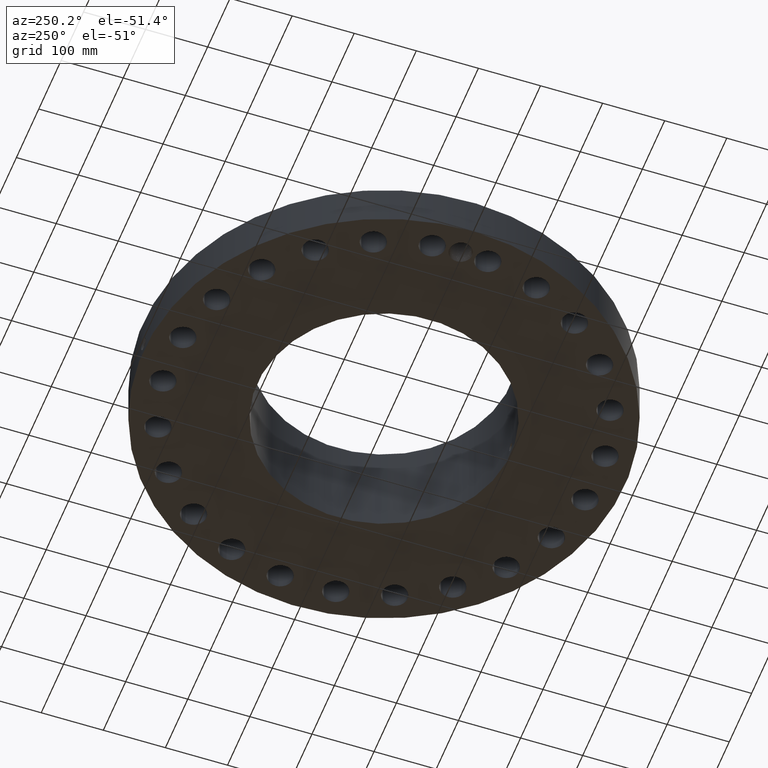
[diagram: clean part render]
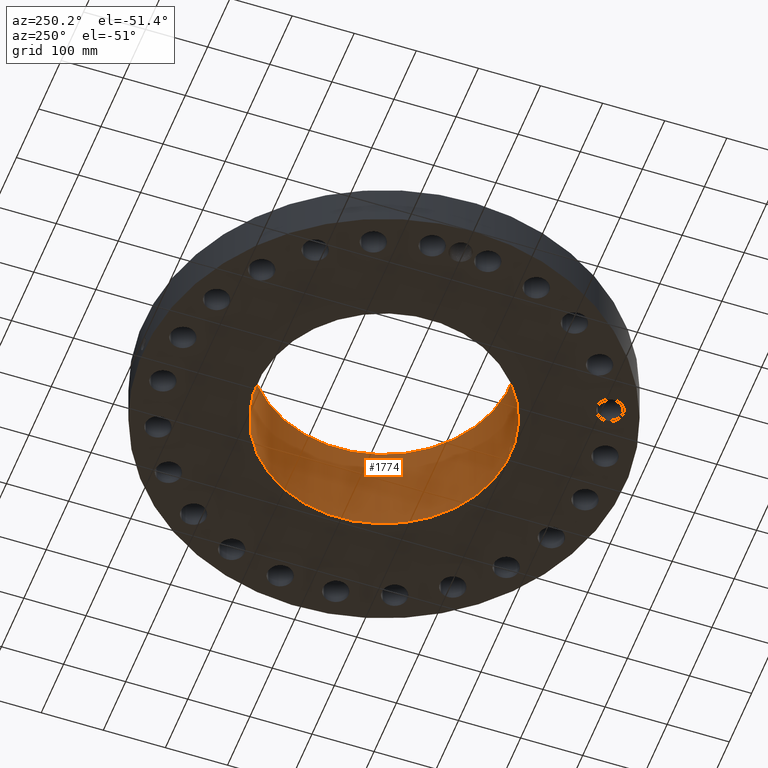
[diagram: same view with one face highlighted and labeled with its STEP entity id]
A machine part, auxiliary view. The second image highlights one B-rep face of the part: STEP entity #1774.
In plain terms, the highlighted cylindrical surface (partial cylindrical patch) has radius 203.987 mm, axis along (0, 0, -1).
Its self-contained STEP definition (entity closure, byte-faithful):
#253=AXIS2_PLACEMENT_3D('Circle Axis2P3D',#251,#252,$) ;
#1705=AXIS2_PLACEMENT_3D('Cylinder Axis2P3D',#1702,#1703,#1704) ;
#1709=AXIS2_PLACEMENT_3D('Circle Axis2P3D',#1707,#1708,$) ;
#251=CARTESIAN_POINT('Axis2P3D Location',(0.,0.,0.250000000001)) ;
#255=CARTESIAN_POINT('Vertex',(3.85026650055,7.04786555457,0.250000000001)) ;
#257=CARTESIAN_POINT('Vertex',(-3.85026650055,-7.04786555457,0.250000000001)) ;
#1702=CARTESIAN_POINT('Axis2P3D Location',(0.,0.,3.56000000001)) ;
#1707=CARTESIAN_POINT('Axis2P3D Location',(0.,0.,6.87000000003)) ;
#1711=CARTESIAN_POINT('Vertex',(3.85026650055,7.04786555457,6.87000000003)) ;
#1713=CARTESIAN_POINT('Vertex',(-3.85026650055,-7.04786555457,6.87000000003)) ;
#1716=CARTESIAN_POINT('Line Origine',(3.85026650055,7.04786555457,3.56000000001)) ;
#1721=CARTESIAN_POINT('Line Origine',(-3.85026650055,-7.04786555457,3.56000000001)) ;
#1733=CARTESIAN_POINT('Control Point',(0.219395640473,-8.02800265031,0.820143615352)) ;
#1734=CARTESIAN_POINT('Control Point',(0.194443231326,-8.02868456959,0.77446853678)) ;
#1735=CARTESIAN_POINT('Control Point',(0.157606155075,-8.02959426464,0.735289568023)) ;
#1736=CARTESIAN_POINT('Control Point',(0.111110289737,-8.03047894444,0.706757867075)) ;
#1737=CARTESIAN_POINT('Control Point',(0.0336761688549,-8.0311828387,0.68411782551)) ;
#1738=CARTESIAN_POINT('Control Point',(-0.0446680706343,-8.03093962884,0.69194321572)) ;
#1739=CARTESIAN_POINT('Control Point',(-0.0702969801262,-8.03075082117,0.697955295353)) ;
#1740=CARTESIAN_POINT('Control Point',(-0.143952060428,-8.02991643995,0.725785403292)) ;
#1741=CARTESIAN_POINT('Control Point',(-0.203238942446,-8.02855443048,0.780496572444)) ;
#1742=CARTESIAN_POINT('Control Point',(-0.23220539498,-8.02766102467,0.82673324457)) ;
#1743=CARTESIAN_POINT('Control Point',(-0.255839783995,-8.02692648241,0.904880951941)) ;
#1744=CARTESIAN_POINT('Control Point',(-0.248284067962,-8.02716111598,0.984247986253)) ;
#1745=CARTESIAN_POINT('Control Point',(-0.242050260832,-8.02735751363,1.01081253775)) ;
#1746=CARTESIAN_POINT('Control Point',(-0.232316266227,-8.02764954518,1.03620533786)) ;
#1747=CARTESIAN_POINT('Control Point',(-0.219395640473,-8.02800265031,1.05985638466)) ;
#1748=CARTESIAN_POINT('Vertex',(0.219395640473,-8.02800265031,0.820143615352)) ;
#1750=CARTESIAN_POINT('Vertex',(-0.219395640473,-8.02800265031,1.05985638466)) ;
#1754=CARTESIAN_POINT('Control Point',(-0.219395640473,-8.02800265031,1.05985638466)) ;
#1755=CARTESIAN_POINT('Control Point',(-0.194443231327,-8.02868456959,1.10553146323)) ;
#1756=CARTESIAN_POINT('Control Point',(-0.157606155079,-8.02959426464,1.14471043198)) ;
#1757=CARTESIAN_POINT('Control Point',(-0.111110289738,-8.03047894444,1.17324213293)) ;
#1758=CARTESIAN_POINT('Control Point',(-0.0336761688553,-8.0311828387,1.1958821745)) ;
#1759=CARTESIAN_POINT('Control Point',(0.0446680706353,-8.03093962884,1.18805678429)) ;
#1760=CARTESIAN_POINT('Control Point',(0.0702969801112,-8.03075082117,1.18204470466)) ;
#1761=CARTESIAN_POINT('Control Point',(0.143952060417,-8.02991643995,1.15421459672)) ;
#1762=CARTESIAN_POINT('Control Point',(0.203238942441,-8.02855443048,1.09950342757)) ;
#1763=CARTESIAN_POINT('Control Point',(0.232205394976,-8.02766102467,1.05326675544)) ;
#1764=CARTESIAN_POINT('Control Point',(0.255839783999,-8.02692648241,0.975119048056)) ;
#1765=CARTESIAN_POINT('Control Point',(0.24828406796,-8.02716111598,0.895752013726)) ;
#1766=CARTESIAN_POINT('Control Point',(0.242050260845,-8.02735751363,0.869187462286)) ;
#1767=CARTESIAN_POINT('Control Point',(0.232316266236,-8.02764954518,0.843794662167)) ;
#1768=CARTESIAN_POINT('Control Point',(0.219395640473,-8.02800265031,0.820143615352)) ;
#252=DIRECTION('Axis2P3D Direction',(0.,0.,-0.0393700787402)) ;
#1703=DIRECTION('Axis2P3D Direction',(0.,0.,-0.0393700787402)) ;
#1704=DIRECTION('Axis2P3D XDirection',(-0.0188750212049,-0.0345504945626,0.)) ;
#1708=DIRECTION('Axis2P3D Direction',(0.,0.,-0.0393700787402)) ;
#1717=DIRECTION('Vector Direction',(0.,0.,-0.0393700787402)) ;
#1722=DIRECTION('Vector Direction',(0.,0.,-0.0393700787402)) ;
#1718=VECTOR('Line Direction',#1717,0.0393700787402) ;
#1723=VECTOR('Line Direction',#1722,0.0393700787402) ;
#1727=ORIENTED_EDGE('',*,*,#1715,.F.) ;
#1728=ORIENTED_EDGE('',*,*,#1720,.T.) ;
#1729=ORIENTED_EDGE('',*,*,#259,.T.) ;
#1730=ORIENTED_EDGE('',*,*,#1725,.F.) ;
#1771=ORIENTED_EDGE('',*,*,#1752,.F.) ;
#1772=ORIENTED_EDGE('',*,*,#1769,.F.) ;
#1773=FACE_BOUND('',#1770,.T.) ;
#1774=ADVANCED_FACE('PartBody',(#1731,#1773),#1706,.F.) ;
#1732=B_SPLINE_CURVE_WITH_KNOTS('',5,(#1733,#1734,#1735,#1736,#1737,#1738,#1739,#1740,#1741,#1742,#1743,#1744,#1745,#1746,#1747),.UNSPECIFIED.,.F.,.U.,(6,3,3,3,6),(0.,9.34861576814,14.0227898361,23.3728212231,28.2136349874),.UNSPECIFIED.) ;
#1753=B_SPLINE_CURVE_WITH_KNOTS('',5,(#1754,#1755,#1756,#1757,#1758,#1759,#1760,#1761,#1762,#1763,#1764,#1765,#1766,#1767,#1768),.UNSPECIFIED.,.F.,.U.,(6,3,3,3,6),(0.,9.34861576758,14.0227898363,23.3728212232,28.2136349907),.UNSPECIFIED.) ;
#254=CIRCLE('generated circle',#253,8.03100000003) ;
#1710=CIRCLE('generated circle',#1709,8.03100000003) ;
#1706=CYLINDRICAL_SURFACE('generated cylinder',#1705,8.03100000003) ;
#259=EDGE_CURVE('',#256,#258,#254,.T.) ;
#1715=EDGE_CURVE('',#1712,#1714,#1710,.T.) ;
#1720=EDGE_CURVE('',#1712,#256,#1719,.T.) ;
#1725=EDGE_CURVE('',#1714,#258,#1724,.T.) ;
#1752=EDGE_CURVE('',#1749,#1751,#1732,.T.) ;
#1769=EDGE_CURVE('',#1751,#1749,#1753,.T.) ;
#1726=EDGE_LOOP('',(#1727,#1728,#1729,#1730)) ;
#1770=EDGE_LOOP('',(#1771,#1772)) ;
#1731=FACE_OUTER_BOUND('',#1726,.T.) ;
#1719=LINE('Line',#1716,#1718) ;
#1724=LINE('Line',#1721,#1723) ;
#256=VERTEX_POINT('',#255) ;
#258=VERTEX_POINT('',#257) ;
#1712=VERTEX_POINT('',#1711) ;
#1714=VERTEX_POINT('',#1713) ;
#1749=VERTEX_POINT('',#1748) ;
#1751=VERTEX_POINT('',#1750) ;